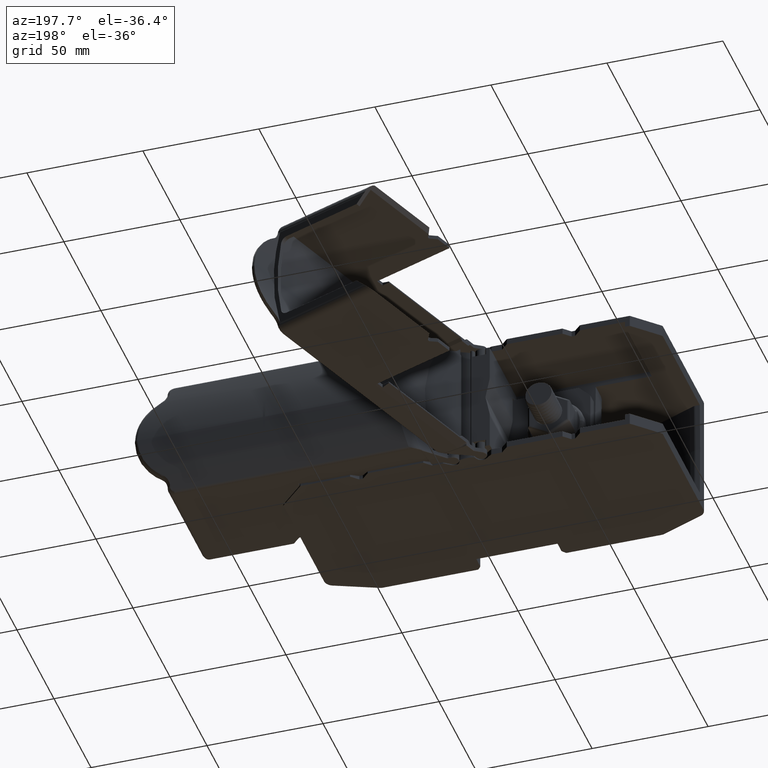
[diagram: clean part render]
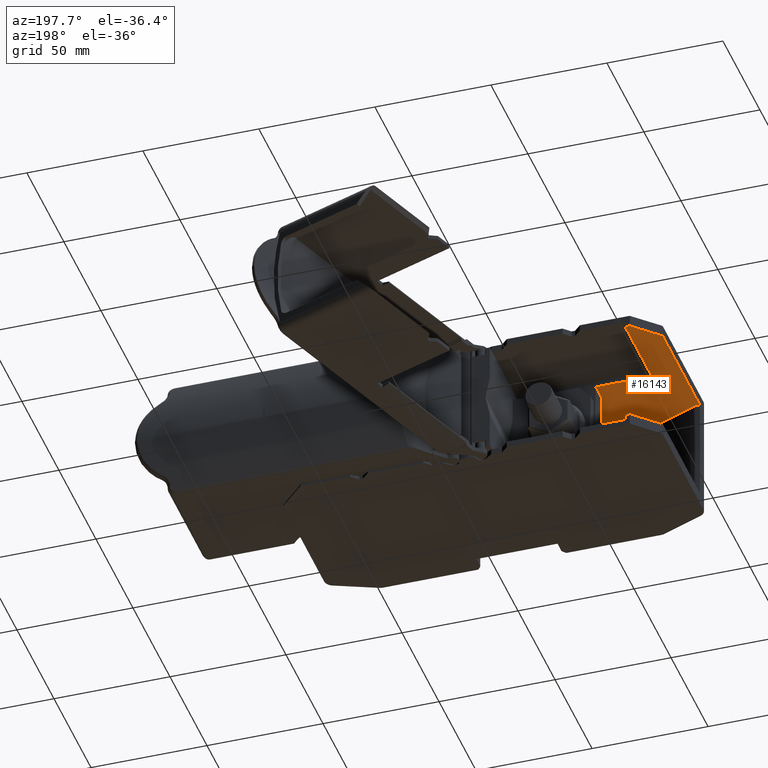
[diagram: same view with one face highlighted and labeled with its STEP entity id]
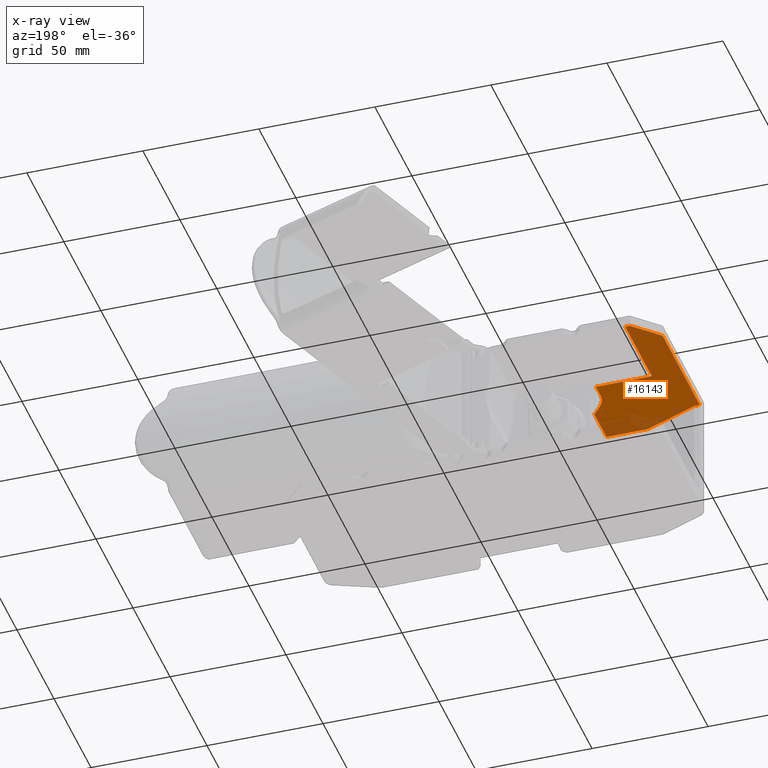
[diagram: x-ray of the same camera — body ghosted, the highlighted face saturated]
A machine part, auxiliary view. The second image highlights one B-rep face of the part: STEP entity #16143.
The next image is the same camera in x-ray: the body ghosted, the highlighted face saturated — about 12% of this face is hidden behind the body in this view.
In plain terms, the highlighted planar face has unit normal (-0, 0, 1).
Its self-contained STEP definition (entity closure, byte-faithful):
#202 = CARTESIAN_POINT ( 'NONE',  ( 405.2734623899094700, -238.9779826665350700, 26.39999999999746200 ) ) ;
#206 = DIRECTION ( 'NONE',  ( 5.007506151667173000E-015, -5.007506151667150900E-016, -1.000000000000000000 ) ) ;
#247 = DIRECTION ( 'NONE',  ( 1.000000000000000000, 5.341339895111633400E-015, 5.007506151667156400E-015 ) ) ;
#380 = LINE ( 'NONE', #399, #18961 ) ;
#388 = DIRECTION ( 'NONE',  ( -1.792576770439611600E-008, -0.9999999999999997800, 0.0000000000000000000 ) ) ;
#399 = CARTESIAN_POINT ( 'NONE',  ( 358.0234366836075400, -205.1817942830125800, 26.39999999999731300 ) ) ;
#421 = CARTESIAN_POINT ( 'NONE',  ( 383.3237740750157100, -266.7810441903862400, 26.39999999999745500 ) ) ;
#429 = DIRECTION ( 'NONE',  ( -1.000000000000000000, -0.0000000000000000000, -6.982962677686269900E-015 ) ) ;
#441 = LINE ( 'NONE', #457, #18924 ) ;
#449 = CARTESIAN_POINT ( 'NONE',  ( 383.1611390169252900, -266.7321351011970000, 26.39999650091458200 ) ) ;
#450 = DIRECTION ( 'NONE',  ( -0.7071070397794325700, -0.7071065225935678800, -5.020645760540095200E-015 ) ) ;
#457 = CARTESIAN_POINT ( 'NONE',  ( 360.7190427289709200, -257.4363128403624000, 26.39999999999729500 ) ) ;
#461 = CARTESIAN_POINT ( 'NONE',  ( 325.5178421804040500, -232.3717366670575800, 26.39999999999704600 ) ) ;
#467 = DIRECTION ( 'NONE',  ( 0.9238795060789580800, -0.3826834961783697800, 6.427242389295412600E-015 ) ) ;
#480 = DIRECTION ( 'NONE',  ( -0.6490222443804211100, 0.7607694304448627800, -4.570550270794831000E-015 ) ) ;
#484 = CARTESIAN_POINT ( 'NONE',  ( 383.4098445983754000, -266.7816056263497400, 26.39999648805324400 ) ) ;
#486 = LINE ( 'NONE', #494, #18957 ) ;
#494 = CARTESIAN_POINT ( 'NONE',  ( 401.3083005695039600, -250.3430246585783200, 26.39999999999757900 ) ) ;
#497 = CARTESIAN_POINT ( 'NONE',  ( 368.7734378630942700, -196.3707969982608000, 26.39999999999734800 ) ) ;
#507 = LINE ( 'NONE', #461, #18926 ) ;
#511 = LINE ( 'NONE', #497, #18913 ) ;
#517 = CARTESIAN_POINT ( 'NONE',  ( 383.2408722331359200, -266.7645540206231700, 26.39999999999745100 ) ) ;
#521 = DIRECTION ( 'NONE',  ( -0.9999999999999993300, 3.732766300464425900E-008, -6.515567813646950800E-010 ) ) ;
#531 = LINE ( 'NONE', #547, #18930 ) ;
#547 = CARTESIAN_POINT ( 'NONE',  ( 364.6791164301610600, -257.2840952263982200, 26.40000000317702300 ) ) ;
#875 = LINE ( 'NONE', #1011, #18994 ) ;
#933 = DIRECTION ( 'NONE',  ( -1.000000000000000000, -0.0000000000000000000, -6.982962677686269900E-015 ) ) ;
#1011 = CARTESIAN_POINT ( 'NONE',  ( 325.5178421804040500, -196.3707971870447900, 26.39999999999704600 ) ) ;
#2603 = VERTEX_POINT ( 'NONE', #39289 ) ;
#2611 = VERTEX_POINT ( 'NONE', #39274 ) ;
#2617 = VERTEX_POINT ( 'NONE', #39306 ) ;
#2619 = VERTEX_POINT ( 'NONE', #39321 ) ;
#2620 = VERTEX_POINT ( 'NONE', #39323 ) ;
#2639 = VERTEX_POINT ( 'NONE', #39378 ) ;
#2641 = VERTEX_POINT ( 'NONE', #39339 ) ;
#2642 = VERTEX_POINT ( 'NONE', #39326 ) ;
#2645 = VERTEX_POINT ( 'NONE', #39384 ) ;
#2660 = VERTEX_POINT ( 'NONE', #39344 ) ;
#3285 = AXIS2_PLACEMENT_3D ( 'NONE', #23606, #23621, #23592 ) ;
#8895 =( BOUNDED_CURVE ( )  B_SPLINE_CURVE ( 3, ( #17502, #17486, #17520, #17483 ),
 .UNSPECIFIED., .F., .F. ) 
 B_SPLINE_CURVE_WITH_KNOTS ( ( 4, 4 ),
 ( 6.086866037214731400, 6.479504568672093800 ),
 .UNSPECIFIED. ) 
 CURVE ( )  GEOMETRIC_REPRESENTATION_ITEM ( )  RATIONAL_B_SPLINE_CURVE ( ( 1.000000000000000000, 0.9871941242245245700, 0.9871941242245245700, 1.000000000000000000 ) ) 
 REPRESENTATION_ITEM ( '' )  );
#15557 = B_SPLINE_CURVE_WITH_KNOTS ( 'NONE', 3,
 ( #484, #421, #517, #449 ),
 .UNSPECIFIED., .F., .F.,
 ( 4, 4 ),
 ( 0.0000000000000000000, 1.000000000000000000 ),
 .UNSPECIFIED. ) ;
#16143 = ADVANCED_FACE ( 'NONE', ( #23616 ), #23584, .F. ) ;
#17007 = CARTESIAN_POINT ( 'NONE',  ( 360.7190427417389200, -257.4363128455631800, 26.39999999999682200 ) ) ;
#17389 = DIRECTION ( 'NONE',  ( 1.000000000000000000, 0.0000000000000000000, 6.982962677686269900E-015 ) ) ;
#17397 = LINE ( 'NONE', #17410, #18832 ) ;
#17410 = CARTESIAN_POINT ( 'NONE',  ( 325.5178421804040500, -266.7816057884572800, 26.39999999999704600 ) ) ;
#17483 = CARTESIAN_POINT ( 'NONE',  ( 360.7190427417389200, -257.4363128455631800, 26.39999999999682200 ) ) ;
#17486 = CARTESIAN_POINT ( 'NONE',  ( 360.2172485676141500, -257.2840950557990700, 26.39999999999728800 ) ) ;
#17502 = CARTESIAN_POINT ( 'NONE',  ( 359.9537923751429400, -257.2840950500145100, 26.39999999999728800 ) ) ;
#17520 = CARTESIAN_POINT ( 'NONE',  ( 360.4756409640800700, -257.3354925103923800, 26.39999999999729100 ) ) ;
#17590 = LINE ( 'NONE', #17634, #18896 ) ;
#17608 = CARTESIAN_POINT ( 'NONE',  ( 394.8807234290249000, -232.1827340771145000, 26.39999999999753300 ) ) ;
#17624 = LINE ( 'NONE', #17608, #18870 ) ;
#17625 = DIRECTION ( 'NONE',  ( 9.103586971797101200E-037, 1.000000000000000000, -1.303685468760585900E-022 ) ) ;
#17630 = LINE ( 'NONE', #17662, #18908 ) ;
#17633 = DIRECTION ( 'NONE',  ( 9.103586971797101200E-037, 1.000000000000000000, -1.303685468760585900E-022 ) ) ;
#17634 = CARTESIAN_POINT ( 'NONE',  ( 401.3083005695039600, -232.1827340771145000, 26.39999999999757900 ) ) ;
#17662 = CARTESIAN_POINT ( 'NONE',  ( 370.7734365867760900, -232.3717340771145000, 26.39999999999736200 ) ) ;
#17666 = DIRECTION ( 'NONE',  ( 9.103586971797101200E-037, 1.000000000000000000, -1.303685468760585900E-022 ) ) ;
#18832 = VECTOR ( 'NONE', #17389, 1000.000000000000000 ) ;
#18869 = CIRCLE ( 'NONE', #18884, 10.39273896088532800 ) ;
#18870 = VECTOR ( 'NONE', #17625, 1000.000000000000000 ) ;
#18884 = AXIS2_PLACEMENT_3D ( 'NONE', #202, #206, #247 ) ;
#18896 = VECTOR ( 'NONE', #17633, 1000.000000000000000 ) ;
#18908 = VECTOR ( 'NONE', #17666, 1000.000000000000000 ) ;
#18913 = VECTOR ( 'NONE', #450, 1000.000000000000100 ) ;
#18924 = VECTOR ( 'NONE', #467, 1000.000000000000100 ) ;
#18926 = VECTOR ( 'NONE', #429, 1000.000000000000000 ) ;
#18930 = VECTOR ( 'NONE', #521, 1000.000000000000100 ) ;
#18957 = VECTOR ( 'NONE', #480, 1000.000000000000000 ) ;
#18961 = VECTOR ( 'NONE', #388, 1000.000000000000100 ) ;
#18994 = VECTOR ( 'NONE', #933, 1000.000000000000000 ) ;
#19689 = VERTEX_POINT ( 'NONE', #43927 ) ;
#19739 = VERTEX_POINT ( 'NONE', #43906 ) ;
#19948 = VERTEX_POINT ( 'NONE', #29363 ) ;
#23584 = PLANE ( 'NONE',  #3285 ) ;
#23592 = DIRECTION ( 'NONE',  ( 1.000000000000000000, 0.0000000000000000000, 6.982962677686269900E-015 ) ) ;
#23606 = CARTESIAN_POINT ( 'NONE',  ( 325.5178421804040500, -232.1827340771145000, 26.39999999999704600 ) ) ;
#23616 = FACE_OUTER_BOUND ( 'NONE', #39029, .T. ) ;
#23621 = DIRECTION ( 'NONE',  ( -6.982962677686269900E-015, 1.303685468760585900E-022, 1.000000000000000000 ) ) ;
#29363 = CARTESIAN_POINT ( 'NONE',  ( 359.9537923751429400, -257.2840950500145100, 26.39999999999728800 ) ) ;
#33725 = VERTEX_POINT ( 'NONE', #17007 ) ;
#33936 = EDGE_CURVE ( 'NONE', #2603, #2639, #17397, .T. ) ;
#33985 = EDGE_CURVE ( 'NONE', #19948, #33725, #8895, .T. ) ;
#34036 = EDGE_CURVE ( 'NONE', #2641, #2660, #17624, .T. ) ;
#34060 = EDGE_CURVE ( 'NONE', #2639, #19739, #17590, .T. ) ;
#34081 = EDGE_CURVE ( 'NONE', #2645, #2620, #17630, .T. ) ;
#34095 = EDGE_CURVE ( 'NONE', #2642, #2641, #18869, .T. ) ;
#34118 = EDGE_CURVE ( 'NONE', #2611, #2617, #380, .T. ) ;
#34145 = EDGE_CURVE ( 'NONE', #2603, #19689, #15557, .T. ) ;
#34147 = EDGE_CURVE ( 'NONE', #19739, #2642, #486, .T. ) ;
#34149 = EDGE_CURVE ( 'NONE', #2619, #2611, #511, .T. ) ;
#34159 = EDGE_CURVE ( 'NONE', #2660, #2645, #507, .T. ) ;
#34163 = EDGE_CURVE ( 'NONE', #33725, #19689, #441, .T. ) ;
#34175 = EDGE_CURVE ( 'NONE', #19948, #2617, #531, .T. ) ;
#34232 = EDGE_CURVE ( 'NONE', #2620, #2619, #875, .T. ) ;
#34768 = ORIENTED_EDGE ( 'NONE', *, *, #34149, .F. ) ;
#34769 = ORIENTED_EDGE ( 'NONE', *, *, #34159, .F. ) ;
#34775 = ORIENTED_EDGE ( 'NONE', *, *, #34036, .F. ) ;
#34776 = ORIENTED_EDGE ( 'NONE', *, *, #34147, .F. ) ;
#34780 = ORIENTED_EDGE ( 'NONE', *, *, #33936, .F. ) ;
#34783 = ORIENTED_EDGE ( 'NONE', *, *, #34175, .T. ) ;
#34787 = ORIENTED_EDGE ( 'NONE', *, *, #34095, .F. ) ;
#34811 = ORIENTED_EDGE ( 'NONE', *, *, #34145, .T. ) ;
#34817 = ORIENTED_EDGE ( 'NONE', *, *, #34163, .F. ) ;
#34849 = ORIENTED_EDGE ( 'NONE', *, *, #34060, .F. ) ;
#34850 = ORIENTED_EDGE ( 'NONE', *, *, #33985, .F. ) ;
#34852 = ORIENTED_EDGE ( 'NONE', *, *, #34081, .F. ) ;
#34863 = ORIENTED_EDGE ( 'NONE', *, *, #34118, .F. ) ;
#34877 = ORIENTED_EDGE ( 'NONE', *, *, #34232, .F. ) ;
#39029 = EDGE_LOOP ( 'NONE', ( #34783, #34863, #34768, #34877, #34852, #34769, #34775, #34787, #34776, #34849, #34780, #34811, #34817, #34850 ) ) ;
#39274 = CARTESIAN_POINT ( 'NONE',  ( 358.0234366522374800, -207.1207903464485600, 26.39999999999730200 ) ) ;
#39289 = CARTESIAN_POINT ( 'NONE',  ( 383.4098445983754000, -266.7816056263497400, 26.39999648805324400 ) ) ;
#39306 = CARTESIAN_POINT ( 'NONE',  ( 358.0234357496337300, -257.2840949779504700, 26.39999999961169800 ) ) ;
#39321 = CARTESIAN_POINT ( 'NONE',  ( 368.7734377687021900, -196.3707971241167900, 26.39999999999735900 ) ) ;
#39323 = CARTESIAN_POINT ( 'NONE',  ( 370.7734370348561600, -196.3707971263688700, 26.39999999999735900 ) ) ;
#39326 = CARTESIAN_POINT ( 'NONE',  ( 397.3669840939487600, -245.7231012025287100, 26.39999999999742600 ) ) ;
#39339 = CARTESIAN_POINT ( 'NONE',  ( 394.8807234290243900, -238.9779825695212900, 26.39999999999741200 ) ) ;
#39344 = CARTESIAN_POINT ( 'NONE',  ( 394.8807234291418200, -232.3717366670575800, 26.39999999999957200 ) ) ;
#39378 = CARTESIAN_POINT ( 'NONE',  ( 401.3083006571387200, -266.7816060062759800, 26.40000000379961900 ) ) ;
#39384 = CARTESIAN_POINT ( 'NONE',  ( 370.7734365867760900, -232.3717363670099900, 26.39999999999945500 ) ) ;
#43906 = CARTESIAN_POINT ( 'NONE',  ( 401.3083005695039600, -250.3430246585783200, 26.39999999999692900 ) ) ;
#43927 = CARTESIAN_POINT ( 'NONE',  ( 383.1611390169252900, -266.7321351011970000, 26.39999650091458200 ) ) ;